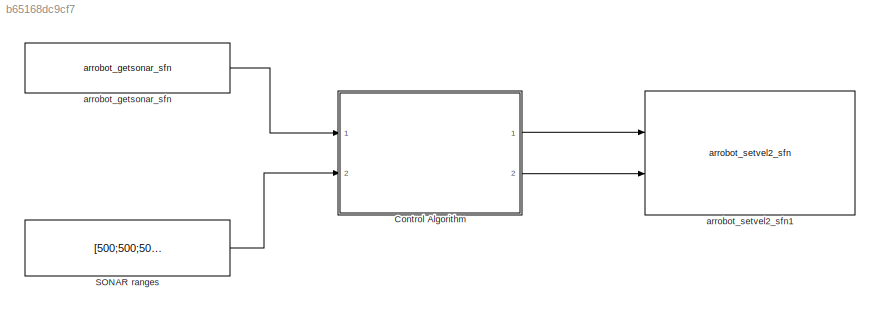
MODEL slx_b65168dc9cf7
KIND model
CONFIG PreLoadFcn = Install_Library
CONFIG StartFcn = loadlibrary('ariac_vc10_i386.dll','ariac.h');\ncalllib('ariac_vc10_i386','aria_init',1,{'aria'});\ncalllib('ariac_vc10_i386','arrobot_connect');
CONFIG StopFcn = calllib('ariac_vc10_i386','arrobot_stop');\nunloadlibrary ariac_vc10_i386\n
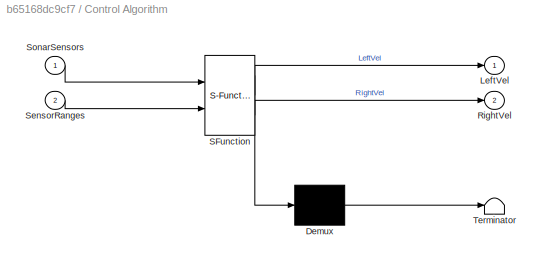
BLOCK [SubSystem] Control Algorithm
  ErrorFcn = Stateflow.Translate.translate
  FunctionWithSeparateData = off
  MaskHideContents = off
  MinAlgLoopOccurrences = off
  Opaque = off
  PermitHierarchicalResolution = ExplicitOnly
  Ports = [2, 2]
  PropExecContextOutsideSubsystem = off
  RTWSystemCode = Auto
  RequestExecContextInheritance = off
  SFBlockType = Chart
  TreatAsAtomicUnit = on
BLOCK [Demux] Control Algorithm/ Demux 
  Outputs = 1
  Ports = [1, 1]
BLOCK [S-Function] Control Algorithm/ SFunction 
  EnableBusSupport = on
  FunctionName = sf_sfun
  Parameters = v0
  PortCounts = [2 3]
  Ports = [2, 3]
  Tag = Stateflow S-Function main_demo_real_robot 1
BLOCK [Terminator] Control Algorithm/ Terminator 
BLOCK [Outport] Control Algorithm/LeftVel
  IconDisplay = Port number
BLOCK [Outport] Control Algorithm/RightVel
  IconDisplay = Port number
  Port = 2
BLOCK [Inport] Control Algorithm/SensorRanges
  IconDisplay = Port number
  Port = 2
BLOCK [Inport] Control Algorithm/SonarSensors
  IconDisplay = Port number
BLOCK [Constant] SONAR ranges
  Value = [500;500;500;500;500;500;500;500]
BLOCK [Reference] arrobot_getsonar_sfn  REF=Sensors/arrobot_getsonar_sfn
  AttributesFormatString = Get range readings of all front sonar on mobile robot (mm)
  Description = Get range readings of all front sonar on mobile robot (mm)
  Ports = [0, 1]
  SFunctionSpec = void arrobot_getsonar(double y1[16])
  ShowSpec = on
  SourceBlock = Sensors/arrobot_getsonar_sfn
  SourceType = Legacy Function
BLOCK [Reference] arrobot_setvel2_sfn1  REF=Motors/arrobot_setvel2_sfn
  AttributesFormatString = Set left, right wheel velocities separately (mm/sec), overrides vel, rotvel
  Description = Set left, right wheel velocities separately (mm/sec), overrides vel, rotvel
  Ports = [2]
  SFunctionSpec = void arrobot_setvel2(double u1, double u2)
  ShowSpec = on
  SourceBlock = Motors/arrobot_setvel2_sfn
  SourceType = Legacy Function
LINE Control Algorithm:1 -> arrobot_setvel2_sfn1:1
LINE Control Algorithm:2 -> arrobot_setvel2_sfn1:2
LINE SONAR ranges:1 -> Control Algorithm:2
LINE arrobot_getsonar_sfn:1 -> Control Algorithm:1
